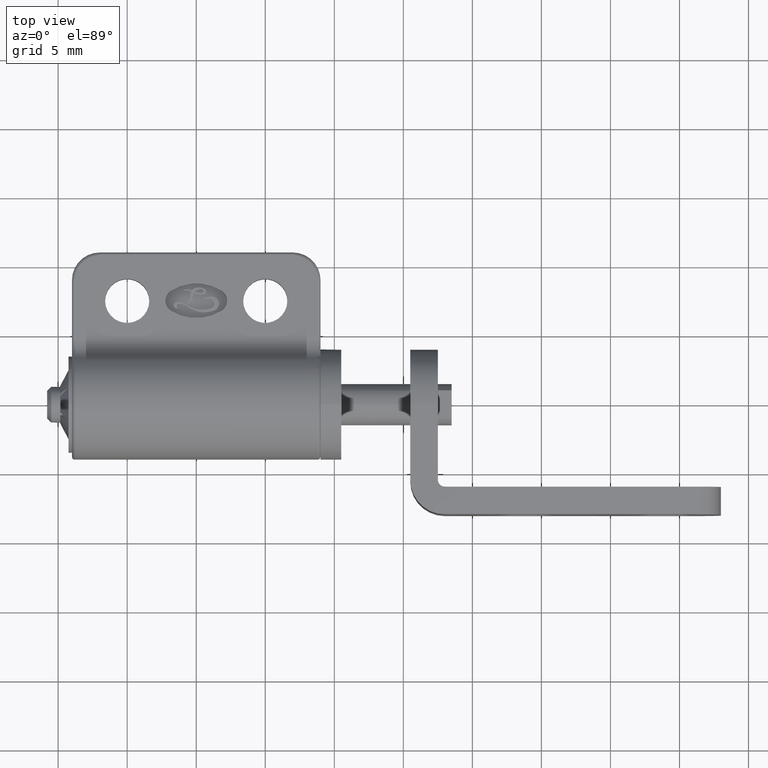
[diagram: clean part render]
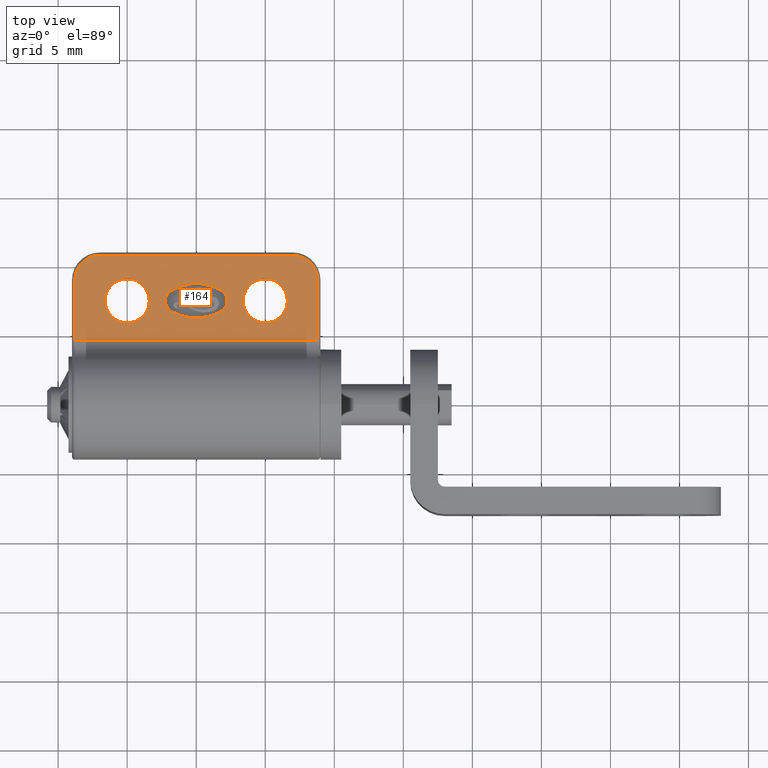
[diagram: same view with one face highlighted and labeled with its STEP entity id]
A machine part, top view. The second image highlights one B-rep face of the part: STEP entity #164.
In plain terms, the highlighted planar face has unit normal (0, 0, 1).
Its self-contained STEP definition (entity closure, byte-faithful):
#164=ADVANCED_FACE('',(#1460,#1461,#1462,#1463),#1459,.T.);
#1459=PLANE('',#2819);
#1460=FACE_OUTER_BOUND('',#2820,.T.);
#1461=FACE_BOUND('',#2821,.T.);
#1462=FACE_BOUND('',#2822,.T.);
#1463=FACE_BOUND('',#2823,.T.);
#2816=CARTESIAN_POINT('',(-1.05600000000E+01,1.14190227771E+01,1.50000000000E+00));
#2817=DIRECTION('',(0.00000000000E+00,0.00000000000E+00,1.00000000000E+00));
#2818=DIRECTION('',(0.00000000000E+00,-1.00000000000E+00,0.00000000000E+00));
#2819=AXIS2_PLACEMENT_3D('',#2816,#2817,#2818);
#2820=EDGE_LOOP('',(#3794,#3795,#3796,#3797,#3798,#3799));
#2821=EDGE_LOOP('',(#3800,#3801,#3802,#3803));
#2822=EDGE_LOOP('',(#3804,#3805));
#2823=EDGE_LOOP('',(#3806,#3807));
#3794=ORIENTED_EDGE('',*,*,#4353,.F.);
#3795=ORIENTED_EDGE('',*,*,#4367,.F.);
#3796=ORIENTED_EDGE('',*,*,#4313,.F.);
#3797=ORIENTED_EDGE('',*,*,#4361,.F.);
#3798=ORIENTED_EDGE('',*,*,#4359,.F.);
#3799=ORIENTED_EDGE('',*,*,#4356,.F.);
#3800=ORIENTED_EDGE('',*,*,#4471,.T.);
#3801=ORIENTED_EDGE('',*,*,#4478,.T.);
#3802=ORIENTED_EDGE('',*,*,#4476,.T.);
#3803=ORIENTED_EDGE('',*,*,#4474,.T.);
#3804=ORIENTED_EDGE('',*,*,#4490,.T.);
#3805=ORIENTED_EDGE('',*,*,#4491,.T.);
#3806=ORIENTED_EDGE('',*,*,#4492,.T.);
#3807=ORIENTED_EDGE('',*,*,#4493,.T.);
#4313=EDGE_CURVE('',#6020,#6027,#6028,.T.);
#4353=EDGE_CURVE('',#6261,#6281,#6295,.T.);
#4356=EDGE_CURVE('',#6281,#6301,#6315,.T.);
#4359=EDGE_CURVE('',#6301,#6321,#6335,.T.);
#4361=EDGE_CURVE('',#6321,#6020,#6347,.T.);
#4367=EDGE_CURVE('',#6027,#6261,#6383,.T.);
#4471=EDGE_CURVE('',#7075,#7076,#7077,.T.);
#4474=EDGE_CURVE('',#7095,#7075,#7096,.T.);
#4476=EDGE_CURVE('',#7108,#7095,#7109,.T.);
#4478=EDGE_CURVE('',#7076,#7108,#7121,.T.);
#4490=EDGE_CURVE('',#7195,#7196,#7197,.T.);
#4491=EDGE_CURVE('',#7196,#7195,#7203,.T.);
#4492=EDGE_CURVE('',#7209,#7210,#7211,.T.);
#4493=EDGE_CURVE('',#7210,#7209,#7217,.T.);
#6020=VERTEX_POINT('',#8641);
#6027=VERTEX_POINT('',#8646);
#6028=LINE('',#8647,#8648);
#6261=VERTEX_POINT('',#8802);
#6281=VERTEX_POINT('',#8816);
#6295=LINE('',#8825,#8826);
#6301=VERTEX_POINT('',#8828);
#6315=CIRCLE('',#8841,1.80000000000E+00);
#6321=VERTEX_POINT('',#8842);
#6335=LINE('',#8851,#8852);
#6347=CIRCLE('',#8861,1.80000000000E+00);
#6383=LINE('',#8878,#8879);
#7075=VERTEX_POINT('',#9322);
#7076=VERTEX_POINT('',#9323);
#7077=CIRCLE('',#9327,8.52777777778E-01);
#7095=VERTEX_POINT('',#9334);
#7096=CIRCLE('',#9338,3.47222222222E+00);
#7108=VERTEX_POINT('',#9342);
#7109=CIRCLE('',#9346,8.52777777778E-01);
#7121=CIRCLE('',#9353,3.47222222222E+00);
#7195=VERTEX_POINT('',#9392);
#7196=VERTEX_POINT('',#9393);
#7197=CIRCLE('',#9397,1.60000000000E+00);
#7203=CIRCLE('',#9401,1.60000000000E+00);
#7209=VERTEX_POINT('',#9402);
#7210=VERTEX_POINT('',#9403);
#7211=CIRCLE('',#9407,1.60000000000E+00);
#7217=CIRCLE('',#9411,1.60000000000E+00);
#8641=CARTESIAN_POINT('',(8.80000000000E+00,9.00000000000E+00,1.50000000000E+00));
#8646=CARTESIAN_POINT('',(8.80000000000E+00,4.60977222865E+00,1.50000000000E+00));
#8647=CARTESIAN_POINT('',(8.80000000000E+00,9.00000000000E+00,1.50000000000E+00));
#8648=VECTOR('',#8649,4.39022777135E+00);
#8649=DIRECTION('',(0.00000000000E+00,-1.00000000000E+00,0.00000000000E+00));
#8802=CARTESIAN_POINT('',(-8.80000000000E+00,4.60977222865E+00,1.50000000000E+00));
#8816=CARTESIAN_POINT('',(-8.80000000000E+00,9.00000000000E+00,1.50000000000E+00));
#8825=CARTESIAN_POINT('',(-8.80000000000E+00,4.60977222865E+00,1.50000000000E+00));
#8826=VECTOR('',#8827,4.39022777135E+00);
#8827=DIRECTION('',(0.00000000000E+00,1.00000000000E+00,0.00000000000E+00));
#8828=CARTESIAN_POINT('',(-7.00000000000E+00,1.08000000000E+01,1.50000000000E+00));
#8838=CARTESIAN_POINT('',(-7.00000000000E+00,9.00000000000E+00,1.50000000000E+00));
#8839=DIRECTION('',(0.00000000000E+00,0.00000000000E+00,-1.00000000000E+00));
#8840=DIRECTION('',(1.00000000000E+00,-0.00000000000E+00,-0.00000000000E+00));
#8841=AXIS2_PLACEMENT_3D('',#8838,#8839,#8840);
#8842=CARTESIAN_POINT('',(7.00000000000E+00,1.08000000000E+01,1.50000000000E+00));
#8851=CARTESIAN_POINT('',(-7.00000000000E+00,1.08000000000E+01,1.50000000000E+00));
#8852=VECTOR('',#8853,1.40000000000E+01);
#8853=DIRECTION('',(1.00000000000E+00,0.00000000000E+00,0.00000000000E+00));
#8858=CARTESIAN_POINT('',(7.00000000000E+00,9.00000000000E+00,1.50000000000E+00));
#8859=DIRECTION('',(0.00000000000E+00,0.00000000000E+00,-1.00000000000E+00));
#8860=DIRECTION('',(-0.00000000000E+00,-1.00000000000E+00,-0.00000000000E+00));
#8861=AXIS2_PLACEMENT_3D('',#8858,#8859,#8860);
#8878=CARTESIAN_POINT('',(8.80000000000E+00,4.60977222865E+00,1.50000000000E+00));
#8879=VECTOR('',#8880,1.76000000000E+01);
#8880=DIRECTION('',(-1.00000000000E+00,0.00000000000E+00,0.00000000000E+00));
#9322=CARTESIAN_POINT('',(1.83828368074E+00,8.22345940851E+00,1.50000000000E+00));
#9323=CARTESIAN_POINT('',(1.83828368074E+00,6.77654059149E+00,1.50000000000E+00));
#9324=CARTESIAN_POINT('',(1.38680120875E+00,7.50000000000E+00,1.50000000000E+00));
#9325=DIRECTION('',(0.00000000000E+00,0.00000000000E+00,-1.00000000000E+00));
#9326=DIRECTION('',(-5.29425700053E-01,-8.48356309650E-01,-0.00000000000E+00));
#9327=AXIS2_PLACEMENT_3D('',#9324,#9325,#9326);
#9334=CARTESIAN_POINT('',(-1.83828368074E+00,8.22345940851E+00,1.50000000000E+00));
#9335=CARTESIAN_POINT('',(0.00000000000E+00,5.27777777778E+00,1.50000000000E+00));
#9336=DIRECTION('',(0.00000000000E+00,0.00000000000E+00,-1.00000000000E+00));
#9337=DIRECTION('',(5.29425700053E-01,-8.48356309650E-01,-0.00000000000E+00));
#9338=AXIS2_PLACEMENT_3D('',#9335,#9336,#9337);
#9342=CARTESIAN_POINT('',(-1.83828368074E+00,6.77654059149E+00,1.50000000000E+00));
#9343=CARTESIAN_POINT('',(-1.38680120875E+00,7.50000000000E+00,1.50000000000E+00));
#9344=DIRECTION('',(-0.00000000000E+00,0.00000000000E+00,-1.00000000000E+00));
#9345=DIRECTION('',(5.29425700053E-01,8.48356309650E-01,-0.00000000000E+00));
#9346=AXIS2_PLACEMENT_3D('',#9343,#9344,#9345);
#9350=CARTESIAN_POINT('',(0.00000000000E+00,9.72222222222E+00,1.50000000000E+00));
#9351=DIRECTION('',(0.00000000000E+00,0.00000000000E+00,-1.00000000000E+00));
#9352=DIRECTION('',(-5.29425700053E-01,8.48356309650E-01,-0.00000000000E+00));
#9353=AXIS2_PLACEMENT_3D('',#9350,#9351,#9352);
#9392=CARTESIAN_POINT('',(-3.40000000000E+00,7.50000000000E+00,1.50000000000E+00));
#9393=CARTESIAN_POINT('',(-6.60000000000E+00,7.50000000000E+00,1.50000000000E+00));
#9394=CARTESIAN_POINT('',(-5.00000000000E+00,7.50000000000E+00,1.50000000000E+00));
#9395=DIRECTION('',(0.00000000000E+00,0.00000000000E+00,-1.00000000000E+00));
#9396=DIRECTION('',(1.00000000000E+00,8.88178419700E-16,0.00000000000E+00));
#9397=AXIS2_PLACEMENT_3D('',#9394,#9395,#9396);
#9398=CARTESIAN_POINT('',(-5.00000000000E+00,7.50000000000E+00,1.50000000000E+00));
#9399=DIRECTION('',(0.00000000000E+00,0.00000000000E+00,-1.00000000000E+00));
#9400=DIRECTION('',(1.00000000000E+00,8.88178419700E-16,0.00000000000E+00));
#9401=AXIS2_PLACEMENT_3D('',#9398,#9399,#9400);
#9402=CARTESIAN_POINT('',(6.60000000000E+00,7.50000000000E+00,1.50000000000E+00));
#9403=CARTESIAN_POINT('',(3.40000000000E+00,7.50000000000E+00,1.50000000000E+00));
#9404=CARTESIAN_POINT('',(5.00000000000E+00,7.50000000000E+00,1.50000000000E+00));
#9405=DIRECTION('',(0.00000000000E+00,0.00000000000E+00,-1.00000000000E+00));
#9406=DIRECTION('',(1.00000000000E+00,8.88178419700E-16,0.00000000000E+00));
#9407=AXIS2_PLACEMENT_3D('',#9404,#9405,#9406);
#9408=CARTESIAN_POINT('',(5.00000000000E+00,7.50000000000E+00,1.50000000000E+00));
#9409=DIRECTION('',(0.00000000000E+00,0.00000000000E+00,-1.00000000000E+00));
#9410=DIRECTION('',(1.00000000000E+00,8.88178419700E-16,0.00000000000E+00));
#9411=AXIS2_PLACEMENT_3D('',#9408,#9409,#9410);